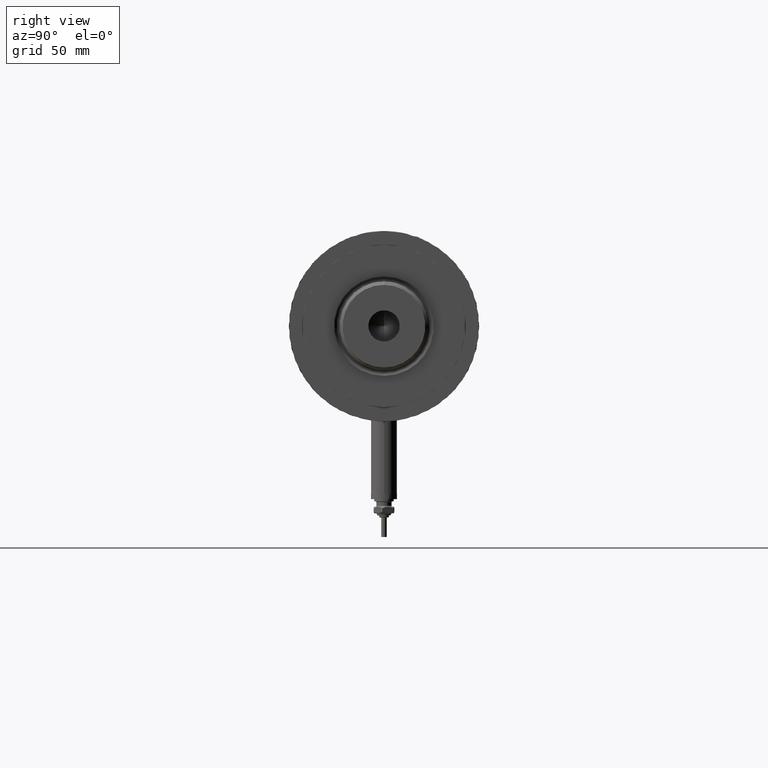
[diagram: clean part render]
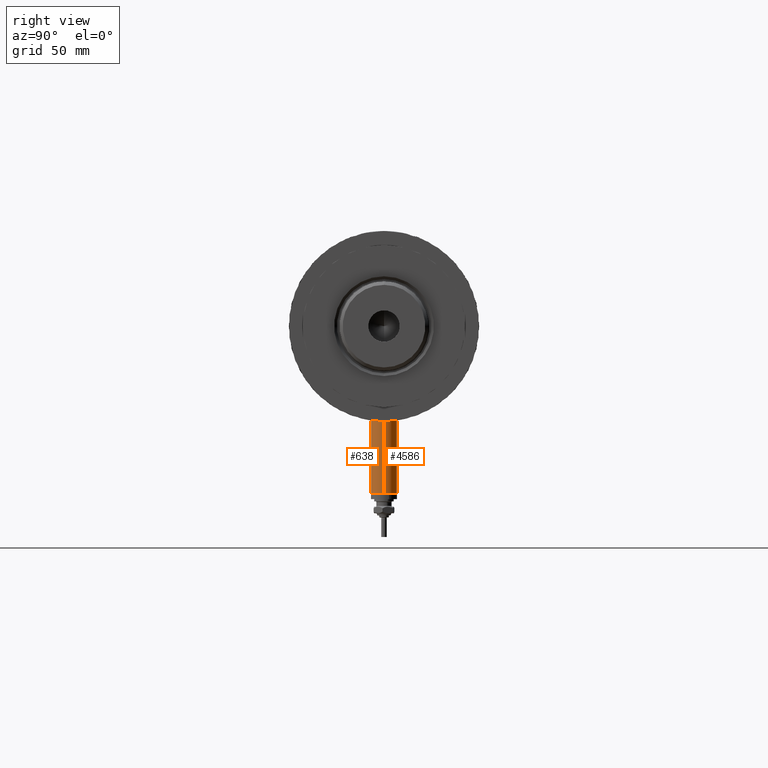
[diagram: same view with one multi-face feature highlighted, each face labeled with its STEP entity id]
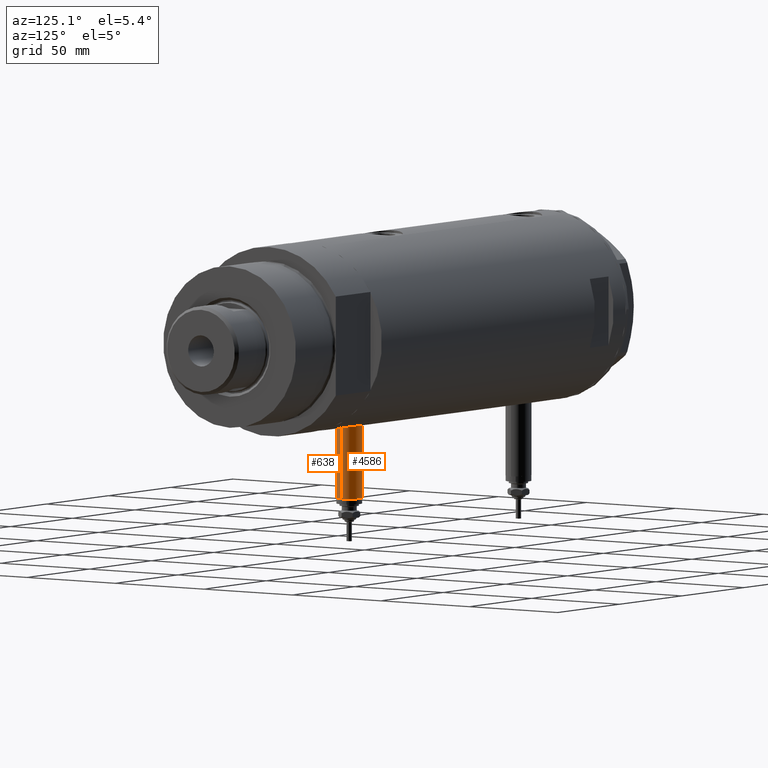
[diagram: same view with one multi-face feature highlighted, each face labeled with its STEP entity id]
A machine part, right view. The highlighted faces form ONE feature: a constant-radius fillet chain: 2 tangent blend faces with common blend radius 6 mm. The faces share edges in the B-rep.
A second angle (auxiliary view) of the same feature is appended — it is thin or edge-on in the first view.
Their STEP definitions:
[1] entity #4586 (Cylinder):
#287 = CARTESIAN_POINT ( 'NONE',  ( -77.50000000000000000, 0.000000000000000000, -67.90000000000001990 ) ) ;
#693 = CARTESIAN_POINT ( 'NONE',  ( -77.50000000000000000, 7.347880794884122694E-16, -55.90000000000000568 ) ) ;
#835 = DIRECTION ( 'NONE',  ( 1.000000000000000000, -0.000000000000000000, -0.000000000000000000 ) ) ;
#858 = EDGE_CURVE ( 'NONE', #4670, #1418, #4995, .T. ) ;
#963 = AXIS2_PLACEMENT_3D ( 'NONE', #5935, #1813, #2704 ) ;
#970 = CIRCLE ( 'NONE', #1161, 6.000000000000005329 ) ;
#1161 = AXIS2_PLACEMENT_3D ( 'NONE', #3361, #3758, #3301 ) ;
#1218 = EDGE_CURVE ( 'NONE', #2061, #5853, #5757, .T. ) ;
#1401 = CARTESIAN_POINT ( 'NONE',  ( -42.79999999999999716, 0.000000000000000000, -67.90000000000001990 ) ) ;
#1418 = VERTEX_POINT ( 'NONE', #1401 ) ;
#1735 = ORIENTED_EDGE ( 'NONE', *, *, #4775, .F. ) ;
#1813 = DIRECTION ( 'NONE',  ( -1.000000000000000000, 0.000000000000000000, 0.000000000000000000 ) ) ;
#2061 = VERTEX_POINT ( 'NONE', #3243 ) ;
#2399 = DIRECTION ( 'NONE',  ( 0.000000000000000000, 0.000000000000000000, -1.000000000000000000 ) ) ;
#2467 = CARTESIAN_POINT ( 'NONE',  ( -77.50000000000000000, 0.000000000000000000, -61.90000000000001279 ) ) ;
#2502 = VECTOR ( 'NONE', #3022, 1000.000000000000000 ) ;
#2704 = DIRECTION ( 'NONE',  ( 0.000000000000000000, 0.000000000000000000, 1.000000000000000000 ) ) ;
#2705 = CIRCLE ( 'NONE', #963, 6.000000000000005329 ) ;
#2977 = VECTOR ( 'NONE', #835, 1000.000000000000000 ) ;
#3017 = ORIENTED_EDGE ( 'NONE', *, *, #1218, .T. ) ;
#3022 = DIRECTION ( 'NONE',  ( 1.000000000000000000, -0.000000000000000000, -0.000000000000000000 ) ) ;
#3168 = CARTESIAN_POINT ( 'NONE',  ( -77.50000000000000000, 0.000000000000000000, -67.90000000000001990 ) ) ;
#3243 = CARTESIAN_POINT ( 'NONE',  ( -77.50000000000000000, 7.347880794884119736E-16, -55.90000000000000568 ) ) ;
#3301 = DIRECTION ( 'NONE',  ( 0.000000000000000000, 0.000000000000000000, 1.000000000000000000 ) ) ;
#3361 = CARTESIAN_POINT ( 'NONE',  ( -42.79999999999999716, 0.000000000000000000, -61.90000000000001279 ) ) ;
#3758 = DIRECTION ( 'NONE',  ( -1.000000000000000000, 0.000000000000000000, 0.000000000000000000 ) ) ;
#3844 = FACE_OUTER_BOUND ( 'NONE', #5393, .T. ) ;
#3967 = AXIS2_PLACEMENT_3D ( 'NONE', #2467, #4791, #2399 ) ;
#4544 = CARTESIAN_POINT ( 'NONE',  ( -42.79999999999999716, 7.347880794884119736E-16, -55.90000000000000568 ) ) ;
#4586 = ADVANCED_FACE ( 'NONE', ( #3844 ), #5690, .T. ) ;
#4670 = VERTEX_POINT ( 'NONE', #287 ) ;
#4775 = EDGE_CURVE ( 'NONE', #2061, #4670, #2705, .T. ) ;
#4791 = DIRECTION ( 'NONE',  ( 1.000000000000000000, -0.000000000000000000, -0.000000000000000000 ) ) ;
#4995 = LINE ( 'NONE', #3168, #2977 ) ;
#5240 = EDGE_CURVE ( 'NONE', #5853, #1418, #970, .T. ) ;
#5393 = EDGE_LOOP ( 'NONE', ( #1735, #3017, #5611, #5529 ) ) ;
#5529 = ORIENTED_EDGE ( 'NONE', *, *, #858, .F. ) ;
#5611 = ORIENTED_EDGE ( 'NONE', *, *, #5240, .T. ) ;
#5690 = CYLINDRICAL_SURFACE ( 'NONE', #3967, 6.000000000000005329 ) ;
#5757 = LINE ( 'NONE', #693, #2502 ) ;
#5853 = VERTEX_POINT ( 'NONE', #4544 ) ;
#5935 = CARTESIAN_POINT ( 'NONE',  ( -77.50000000000000000, 0.000000000000000000, -61.90000000000001279 ) ) ;
[2] entity #638 (Cylinder):
#287 = CARTESIAN_POINT ( 'NONE',  ( -77.50000000000000000, 0.000000000000000000, -67.90000000000001990 ) ) ;
#380 = DIRECTION ( 'NONE',  ( 0.000000000000000000, 0.000000000000000000, 1.000000000000000000 ) ) ;
#638 = ADVANCED_FACE ( 'NONE', ( #2508 ), #4882, .T. ) ;
#693 = CARTESIAN_POINT ( 'NONE',  ( -77.50000000000000000, 7.347880794884122694E-16, -55.90000000000000568 ) ) ;
#820 = DIRECTION ( 'NONE',  ( 0.000000000000000000, 0.000000000000000000, 1.000000000000000000 ) ) ;
#835 = DIRECTION ( 'NONE',  ( 1.000000000000000000, -0.000000000000000000, -0.000000000000000000 ) ) ;
#858 = EDGE_CURVE ( 'NONE', #4670, #1418, #4995, .T. ) ;
#1218 = EDGE_CURVE ( 'NONE', #2061, #5853, #5757, .T. ) ;
#1254 = CARTESIAN_POINT ( 'NONE',  ( -42.79999999999999716, 0.000000000000000000, -61.90000000000001279 ) ) ;
#1342 = EDGE_CURVE ( 'NONE', #1418, #5853, #1428, .T. ) ;
#1401 = CARTESIAN_POINT ( 'NONE',  ( -42.79999999999999716, 0.000000000000000000, -67.90000000000001990 ) ) ;
#1410 = ORIENTED_EDGE ( 'NONE', *, *, #4982, .F. ) ;
#1418 = VERTEX_POINT ( 'NONE', #1401 ) ;
#1428 = CIRCLE ( 'NONE', #2101, 6.000000000000005329 ) ;
#2021 = ORIENTED_EDGE ( 'NONE', *, *, #1342, .T. ) ;
#2061 = VERTEX_POINT ( 'NONE', #3243 ) ;
#2101 = AXIS2_PLACEMENT_3D ( 'NONE', #1254, #5870, #380 ) ;
#2159 = DIRECTION ( 'NONE',  ( 0.000000000000000000, 0.000000000000000000, -1.000000000000000000 ) ) ;
#2502 = VECTOR ( 'NONE', #3022, 1000.000000000000000 ) ;
#2508 = FACE_OUTER_BOUND ( 'NONE', #5317, .T. ) ;
#2542 = DIRECTION ( 'NONE',  ( 1.000000000000000000, -0.000000000000000000, -0.000000000000000000 ) ) ;
#2790 = DIRECTION ( 'NONE',  ( -1.000000000000000000, 0.000000000000000000, 0.000000000000000000 ) ) ;
#2977 = VECTOR ( 'NONE', #835, 1000.000000000000000 ) ;
#3022 = DIRECTION ( 'NONE',  ( 1.000000000000000000, -0.000000000000000000, -0.000000000000000000 ) ) ;
#3096 = AXIS2_PLACEMENT_3D ( 'NONE', #5551, #2790, #820 ) ;
#3168 = CARTESIAN_POINT ( 'NONE',  ( -77.50000000000000000, 0.000000000000000000, -67.90000000000001990 ) ) ;
#3243 = CARTESIAN_POINT ( 'NONE',  ( -77.50000000000000000, 7.347880794884119736E-16, -55.90000000000000568 ) ) ;
#3911 = CARTESIAN_POINT ( 'NONE',  ( -77.50000000000000000, 0.000000000000000000, -61.90000000000001279 ) ) ;
#4156 = ORIENTED_EDGE ( 'NONE', *, *, #1218, .F. ) ;
#4544 = CARTESIAN_POINT ( 'NONE',  ( -42.79999999999999716, 7.347880794884119736E-16, -55.90000000000000568 ) ) ;
#4670 = VERTEX_POINT ( 'NONE', #287 ) ;
#4882 = CYLINDRICAL_SURFACE ( 'NONE', #5987, 6.000000000000005329 ) ;
#4982 = EDGE_CURVE ( 'NONE', #4670, #2061, #5720, .T. ) ;
#4995 = LINE ( 'NONE', #3168, #2977 ) ;
#5289 = ORIENTED_EDGE ( 'NONE', *, *, #858, .T. ) ;
#5317 = EDGE_LOOP ( 'NONE', ( #4156, #1410, #5289, #2021 ) ) ;
#5551 = CARTESIAN_POINT ( 'NONE',  ( -77.50000000000000000, 0.000000000000000000, -61.90000000000001279 ) ) ;
#5720 = CIRCLE ( 'NONE', #3096, 6.000000000000005329 ) ;
#5757 = LINE ( 'NONE', #693, #2502 ) ;
#5853 = VERTEX_POINT ( 'NONE', #4544 ) ;
#5870 = DIRECTION ( 'NONE',  ( -1.000000000000000000, 0.000000000000000000, 0.000000000000000000 ) ) ;
#5987 = AXIS2_PLACEMENT_3D ( 'NONE', #3911, #2542, #2159 ) ;